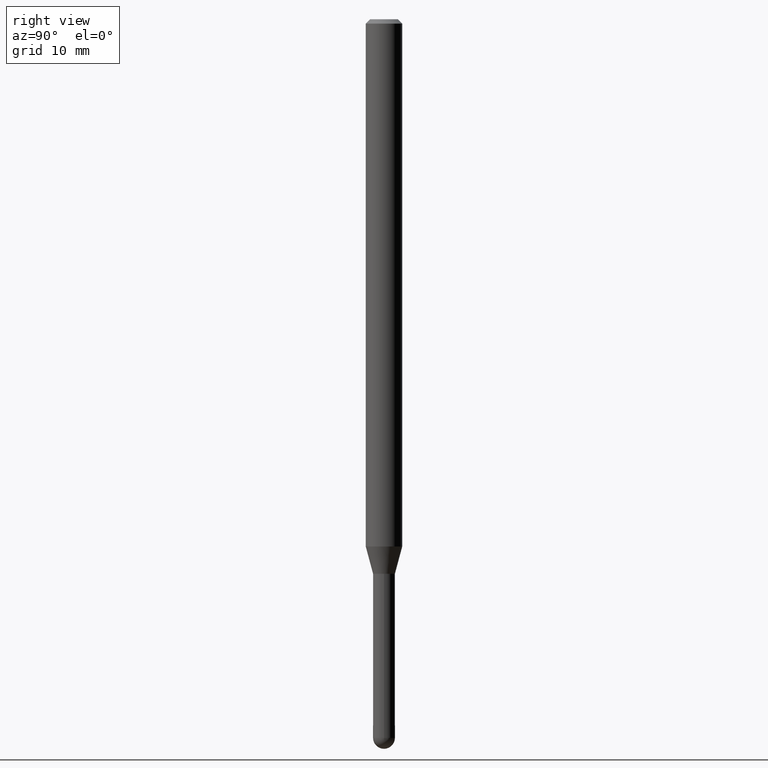
[diagram: clean part render]
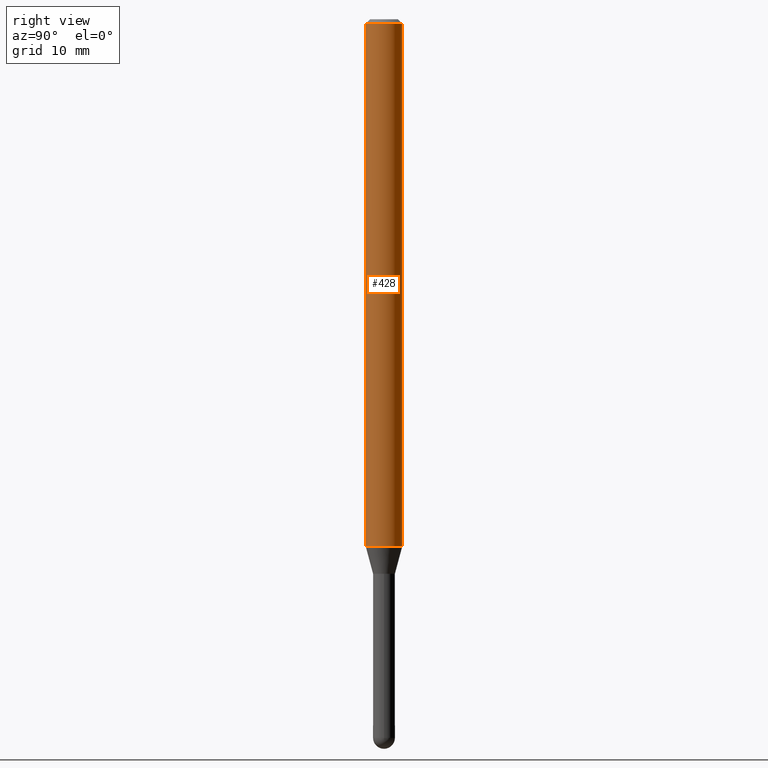
[diagram: same view with one face highlighted and labeled with its STEP entity id]
A machine part, right view. The second image highlights one B-rep face of the part: STEP entity #428.
In plain terms, the highlighted cylindrical surface (edge-blend (fillet) strip) has radius 1.5875 mm, axis along (-0, 0, 1).
Its self-contained STEP definition (entity closure, byte-faithful):
#10 = DIRECTION ( 'NONE',  ( -6.982962677686265922E-15, -1.000000000000000000, 3.491600828614139048E-15 ) ) ;
#27 = DIRECTION ( 'NONE',  ( -2.445385366924015343E-29, 3.491600828614139048E-15, 1.000000000000000000 ) ) ;
#46 = VECTOR ( 'NONE', #342, 39.37007874015748143 ) ;
#52 = EDGE_CURVE ( 'NONE', #181, #456, #246, .T. ) ;
#66 = CARTESIAN_POINT ( 'NONE',  ( -4.364351673553477397E-16, -0.06250000000000634215, -1.806698729810780835 ) ) ;
#72 = AXIS2_PLACEMENT_3D ( 'NONE', #286, #454, #10 ) ;
#78 = EDGE_CURVE ( 'NONE', #89, #489, #504, .T. ) ;
#80 = CARTESIAN_POINT ( 'NONE',  ( 4.440892098501069896E-16, 0.06249999999999995143, -0.01500000000000028394 ) ) ;
#89 = VERTEX_POINT ( 'NONE', #66 ) ;
#103 = EDGE_LOOP ( 'NONE', ( #202, #499, #126, #320 ) ) ;
#126 = ORIENTED_EDGE ( 'NONE', *, *, #250, .F. ) ;
#127 = CYLINDRICAL_SURFACE ( 'NONE', #72, 0.06250000000000000000 ) ;
#181 = VERTEX_POINT ( 'NONE', #432 ) ;
#202 = ORIENTED_EDGE ( 'NONE', *, *, #264, .T. ) ;
#212 = DIRECTION ( 'NONE',  ( -6.982962677686265922E-15, -1.000000000000000000, 4.370956789862821150E-15 ) ) ;
#213 = AXIS2_PLACEMENT_3D ( 'NONE', #372, #344, #212 ) ;
#222 = DIRECTION ( 'NONE',  ( -2.445385366924015343E-29, 3.491600828614139048E-15, 1.000000000000000000 ) ) ;
#239 = DIRECTION ( 'NONE',  ( -6.982962677686265922E-15, -1.000000000000000000, 3.483106191921935554E-15 ) ) ;
#246 = LINE ( 'NONE', #416, #46 ) ;
#250 = EDGE_CURVE ( 'NONE', #489, #456, #434, .T. ) ;
#264 = EDGE_CURVE ( 'NONE', #89, #181, #472, .T. ) ;
#286 = CARTESIAN_POINT ( 'NONE',  ( 0.000000000000000000, 0.000000000000000000, 0.000000000000000000 ) ) ;
#294 = CARTESIAN_POINT ( 'NONE',  ( -4.364351673553916201E-16, -0.06250000000000000000, 2.182250517883836905E-16 ) ) ;
#320 = ORIENTED_EDGE ( 'NONE', *, *, #78, .F. ) ;
#342 = DIRECTION ( 'NONE',  ( -2.445385366924015343E-29, 3.491600828614139048E-15, 1.000000000000000000 ) ) ;
#344 = DIRECTION ( 'NONE',  ( -2.445385366924015343E-29, 3.491600828614139048E-15, 1.000000000000000000 ) ) ;
#355 = VECTOR ( 'NONE', #222, 39.37007874015748143 ) ;
#358 = AXIS2_PLACEMENT_3D ( 'NONE', #414, #27, #239 ) ;
#372 = CARTESIAN_POINT ( 'NONE',  ( 4.418074636319489634E-29, -6.308270782063436198E-15, -1.806698729810781057 ) ) ;
#408 = CARTESIAN_POINT ( 'NONE',  ( -4.364351673553912750E-16, -0.06250000000000005551, -0.01499999999999984852 ) ) ;
#414 = CARTESIAN_POINT ( 'NONE',  ( 3.668078050386039129E-31, -5.237401242921231202E-17, -0.01500000000000006710 ) ) ;
#416 = CARTESIAN_POINT ( 'NONE',  ( 4.440892098500625669E-16, 0.06250000000000000000, -2.182250517883836905E-16 ) ) ;
#428 = ADVANCED_FACE ( 'NONE', ( #492 ), #127, .T. ) ;
#432 = CARTESIAN_POINT ( 'NONE',  ( 4.440892098501064966E-16, 0.06249999999999365785, -1.806698729810781501 ) ) ;
#434 = CIRCLE ( 'NONE', #358, 0.06250000000000000000 ) ;
#454 = DIRECTION ( 'NONE',  ( -2.445385366924015343E-29, 3.491600828614139048E-15, 1.000000000000000000 ) ) ;
#456 = VERTEX_POINT ( 'NONE', #80 ) ;
#472 = CIRCLE ( 'NONE', #213, 0.06250000000000000000 ) ;
#489 = VERTEX_POINT ( 'NONE', #408 ) ;
#492 = FACE_OUTER_BOUND ( 'NONE', #103, .T. ) ;
#499 = ORIENTED_EDGE ( 'NONE', *, *, #52, .T. ) ;
#504 = LINE ( 'NONE', #294, #355 ) ;